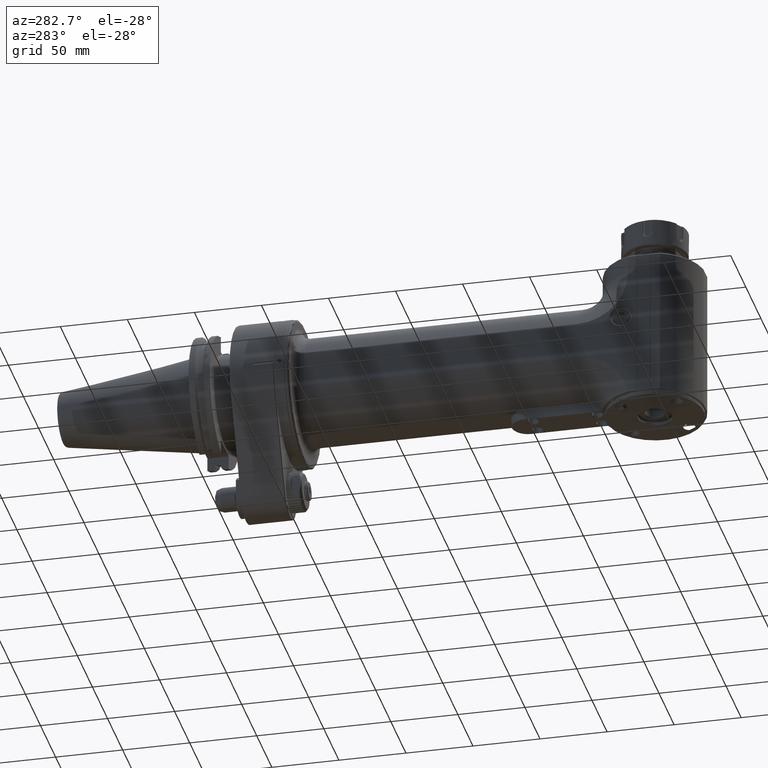
[diagram: clean part render]
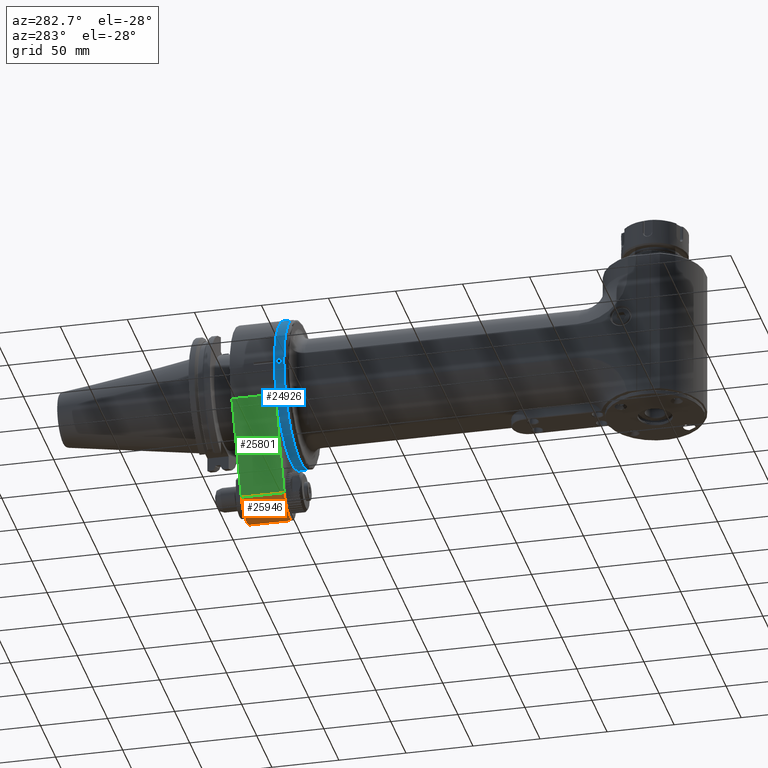
[diagram: same view with three faces highlighted in distinct colors, each labeled with its STEP entity id]
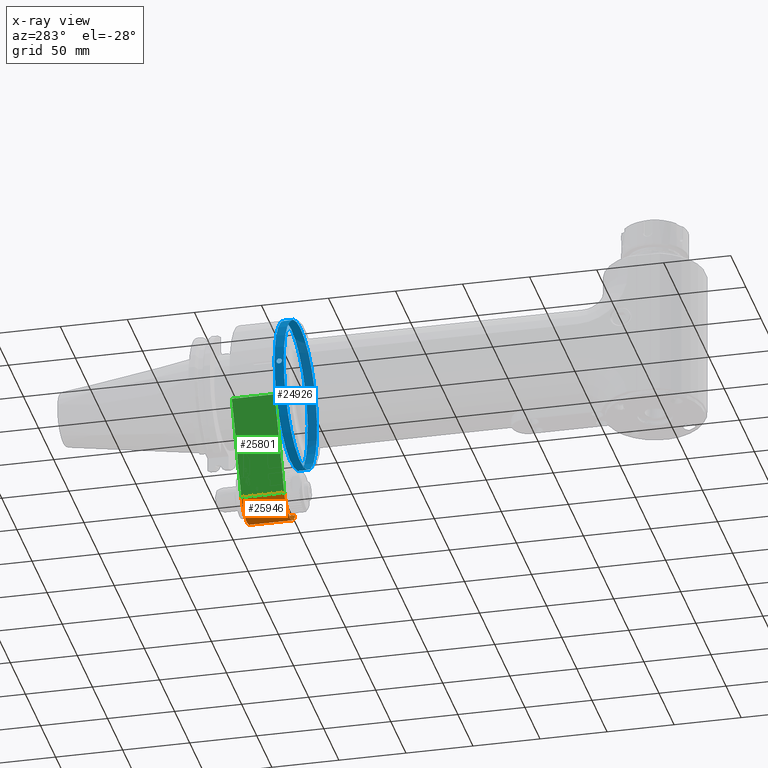
[diagram: x-ray of the same camera — body ghosted, the three highlighted faces saturated]
A machine part, auxiliary view with three faces highlighted in distinct colors.
The next image is the same camera in x-ray (body ghosted, the three faces saturated) — at least one of them is partly hidden behind the body in this view.
Their STEP definitions:

[orange] entity #25946 — the highlighted cylindrical surface (edge-blend (fillet) strip) has radius 20 mm, axis along (0, 1, 0).
#2796=LINE('',#48539,#5209);
#2983=LINE('',#50045,#5396);
#5209=VECTOR('',#34022,31.9997523659797);
#5396=VECTOR('',#34759,31.9997524776297);
#5882=CYLINDRICAL_SURFACE('',#28278,20.);
#7283=FACE_OUTER_BOUND('',#8852,.T.);
#8852=EDGE_LOOP('',(#22790,#22791,#22792,#22793));
#9802=CIRCLE('',#27967,20.);
#9951=CIRCLE('',#28277,20.);
#12094=VERTEX_POINT('',#48405);
#12095=VERTEX_POINT('',#48409);
#12134=VERTEX_POINT('',#48537);
#12360=VERTEX_POINT('',#50041);
#15499=EDGE_CURVE('',#12095,#12094,#9802,.T.);
#15555=EDGE_CURVE('',#12134,#12094,#2796,.T.);
#15924=EDGE_CURVE('',#12134,#12360,#9951,.T.);
#15925=EDGE_CURVE('',#12095,#12360,#2983,.T.);
#22790=ORIENTED_EDGE('',*,*,#15924,.T.);
#22791=ORIENTED_EDGE('',*,*,#15925,.F.);
#22792=ORIENTED_EDGE('',*,*,#15499,.T.);
#22793=ORIENTED_EDGE('',*,*,#15555,.F.);
#25946=ADVANCED_FACE('',(#7283),#5882,.T.);
#27967=AXIS2_PLACEMENT_3D('',#48410,#33922,#33923);
#28277=AXIS2_PLACEMENT_3D('',#50043,#34755,#34756);
#28278=AXIS2_PLACEMENT_3D('',#50044,#34757,#34758);
#33922=DIRECTION('center_axis',(0.,1.,0.));
#33923=DIRECTION('ref_axis',(1.,0.,0.));
#34022=DIRECTION('',(3.81080393947804E-7,-0.99999999999991,1.85405221315602E-7));
#34755=DIRECTION('center_axis',(0.,-1.,0.));
#34756=DIRECTION('ref_axis',(1.,0.,0.));
#34757=DIRECTION('center_axis',(0.,1.,0.));
#34758=DIRECTION('ref_axis',(1.,0.,0.));
#34759=DIRECTION('',(-3.82438699266904E-7,0.99999999999991,1.86079929291902E-7));
#48405=CARTESIAN_POINT('',(-17.9843328943923,0.500151595690337,-88.7499827273196));
#48409=CARTESIAN_POINT('',(17.9843682449328,0.500170512042425,-88.7499999331764));
#48410=CARTESIAN_POINT('Origin',(0.,0.500341024091354,-80.));
#48537=CARTESIAN_POINT('',(-17.9843682475779,32.4998292651373,-88.7499999277408));
#48539=CARTESIAN_POINT('',(-17.98435747667,32.49985520783,-88.74999468733));
#50041=CARTESIAN_POINT('',(17.9843685923995,32.4998283294068,-88.7500001053328));
#50043=CARTESIAN_POINT('Origin',(0.,32.499658530269,-80.));
#50044=CARTESIAN_POINT('Origin',(0.,0.,-80.));
#50045=CARTESIAN_POINT('',(17.98435748801,0.5001435280147,-88.74999469957));

[blue] entity #24926 — the highlighted cylindrical surface (bore or boss wall) has radius 55 mm, axis along (-0, 1, 0).
#384=B_SPLINE_CURVE_WITH_KNOTS('',3,(#38289,#38290,#38291,#38292,#38293,
#38294,#38295,#38296,#38297,#38298,#38299,#38300,#38301,#38302,#38303,#38304,
#38305,#38306,#38307,#38308,#38309,#38310),.UNSPECIFIED.,.F.,.F.,(4,2,2,
2,2,2,2,2,2,2,4),(4.76471702878774E-5,0.0575495657303554,0.132747128957932,
0.200670558487224,0.329421947281225,0.449240050945458,0.56889901613311,
0.690619312402385,0.751157996955262,0.818556301448253,0.870180661496167),
 .UNSPECIFIED.);
#385=B_SPLINE_CURVE_WITH_KNOTS('',3,(#38312,#38313,#38314,#38315,#38316,
#38317,#38318,#38319,#38320,#38321,#38322,#38323,#38324,#38325,#38326,#38327,
#38328,#38329,#38330,#38331,#38332,#38333),.UNSPECIFIED.,.F.,.F.,(4,2,2,
2,2,2,2,2,2,2,4),(3.95623200983854E-5,0.0392633076712616,0.0796881420531636,
0.179470463851627,0.343320224915233,0.505881813597239,0.668353436818447,
0.832277091841076,0.957857268991608,1.01347170327305,1.06748901454717),
 .UNSPECIFIED.);
#1287=LINE('',#38287,#3700);
#1288=LINE('',#38311,#3701);
#3700=VECTOR('',#29825,55.);
#3701=VECTOR('',#29826,55.);
#5741=CYLINDRICAL_SURFACE('',#26657,55.);
#6263=FACE_OUTER_BOUND('',#7756,.T.);
#7756=EDGE_LOOP('',(#17403,#17404,#17405,#17406,#17407,#17408,#17409,#17410,
#17411,#17412));
#9328=CIRCLE('',#26655,55.);
#9329=CIRCLE('',#26656,55.);
#9330=CIRCLE('',#26658,55.);
#9331=CIRCLE('',#26659,55.);
#10571=VERTEX_POINT('',#38276);
#10572=VERTEX_POINT('',#38277);
#10573=VERTEX_POINT('',#38282);
#10574=VERTEX_POINT('',#38283);
#10575=VERTEX_POINT('',#38286);
#10576=VERTEX_POINT('',#38288);
#13220=EDGE_CURVE('',#10571,#10572,#9328,.T.);
#13221=EDGE_CURVE('',#10572,#10571,#9329,.T.);
#13223=EDGE_CURVE('',#10573,#10574,#9330,.T.);
#13224=EDGE_CURVE('',#10574,#10573,#9331,.T.);
#13225=EDGE_CURVE('',#10574,#10575,#1287,.T.);
#13226=EDGE_CURVE('',#10575,#10576,#384,.T.);
#13227=EDGE_CURVE('',#10576,#10571,#1288,.T.);
#13228=EDGE_CURVE('',#10576,#10575,#385,.T.);
#17403=ORIENTED_EDGE('',*,*,#13223,.F.);
#17404=ORIENTED_EDGE('',*,*,#13224,.F.);
#17405=ORIENTED_EDGE('',*,*,#13225,.T.);
#17406=ORIENTED_EDGE('',*,*,#13226,.T.);
#17407=ORIENTED_EDGE('',*,*,#13227,.T.);
#17408=ORIENTED_EDGE('',*,*,#13220,.T.);
#17409=ORIENTED_EDGE('',*,*,#13221,.T.);
#17410=ORIENTED_EDGE('',*,*,#13227,.F.);
#17411=ORIENTED_EDGE('',*,*,#13228,.T.);
#17412=ORIENTED_EDGE('',*,*,#13225,.F.);
#24926=ADVANCED_FACE('',(#6263),#5741,.T.);
#26655=AXIS2_PLACEMENT_3D('',#38278,#29814,#29815);
#26656=AXIS2_PLACEMENT_3D('',#38279,#29816,#29817);
#26657=AXIS2_PLACEMENT_3D('',#38281,#29819,#29820);
#26658=AXIS2_PLACEMENT_3D('',#38284,#29821,#29822);
#26659=AXIS2_PLACEMENT_3D('',#38285,#29823,#29824);
#29814=DIRECTION('center_axis',(0.,1.,0.));
#29815=DIRECTION('ref_axis',(-1.,0.,0.));
#29816=DIRECTION('center_axis',(0.,1.,0.));
#29817=DIRECTION('ref_axis',(-1.,0.,0.));
#29819=DIRECTION('center_axis',(0.,1.,0.));
#29820=DIRECTION('ref_axis',(1.,0.,0.));
#29821=DIRECTION('center_axis',(0.,1.,0.));
#29822=DIRECTION('ref_axis',(1.,0.,0.));
#29823=DIRECTION('center_axis',(0.,1.,0.));
#29824=DIRECTION('ref_axis',(1.,0.,0.));
#29825=DIRECTION('',(0.,-1.,0.));
#29826=DIRECTION('',(0.,-1.,0.));
#38276=CARTESIAN_POINT('',(-55.,264.5000050548,0.));
#38277=CARTESIAN_POINT('',(-7.61850780258389E-13,264.500005054799,55.0000000000018));
#38278=CARTESIAN_POINT('Origin',(0.,264.5000050548,0.));
#38279=CARTESIAN_POINT('Origin',(0.,264.5000050548,0.));
#38281=CARTESIAN_POINT('Origin',(0.,263.605,0.));
#38282=CARTESIAN_POINT('',(-3.80675457286407E-13,271.399993878572,54.9999999999732));
#38283=CARTESIAN_POINT('',(-55.,271.3999938786,6.73555739531044E-15));
#38284=CARTESIAN_POINT('Origin',(0.,271.3999938786,0.));
#38285=CARTESIAN_POINT('Origin',(0.,271.3999938786,0.));
#38286=CARTESIAN_POINT('',(-55.,269.850323377632,-6.95444507218206E-7));
#38287=CARTESIAN_POINT('',(-55.,263.605,6.73555739531044E-15));
#38288=CARTESIAN_POINT('',(-54.9998972986366,265.949609592431,3.31057760667854E-7));
#38289=CARTESIAN_POINT('Ctrl Pts',(-55.,269.849567044107,-2.20427907871024E-7));
#38290=CARTESIAN_POINT('Ctrl Pts',(-55.0000000007682,269.84966822929,0.191670067792559));
#38291=CARTESIAN_POINT('Ctrl Pts',(-54.9989821819534,269.822499858163,0.38169847236425));
#38292=CARTESIAN_POINT('Ctrl Pts',(-54.9946251829346,269.695534930461,0.805539362013885));
#38293=CARTESIAN_POINT('Ctrl Pts',(-54.9912983156071,269.591208639842,0.985157342574003));
#38294=CARTESIAN_POINT('Ctrl Pts',(-54.9868837382859,269.442641135482,1.20564108444121));
#38295=CARTESIAN_POINT('Ctrl Pts',(-54.9846297865406,269.362457201884,1.3032811077611));
#38296=CARTESIAN_POINT('Ctrl Pts',(-54.978048148424,269.10154853872,1.56306166687259));
#38297=CARTESIAN_POINT('Ctrl Pts',(-54.9734503197913,268.888764121607,1.71185412031636));
#38298=CARTESIAN_POINT('Ctrl Pts',(-54.9668642234775,268.403081765203,1.91130604233461));
#38299=CARTESIAN_POINT('Ctrl Pts',(-54.9650468318023,268.153379862179,1.96051697493974));
#38300=CARTESIAN_POINT('Ctrl Pts',(-54.9650341952207,267.649693090859,1.96087122203088));
#38301=CARTESIAN_POINT('Ctrl Pts',(-54.9668340934027,267.400231175288,1.91214382194507));
#38302=CARTESIAN_POINT('Ctrl Pts',(-54.9732052495493,266.928213513437,1.71935063403378));
#38303=CARTESIAN_POINT('Ctrl Pts',(-54.9777051407279,266.712431658168,1.57620319829965));
#38304=CARTESIAN_POINT('Ctrl Pts',(-54.9845547123132,266.440327071511,1.30643687320818));
#38305=CARTESIAN_POINT('Ctrl Pts',(-54.9868150865955,266.359753651328,1.20876550146592));
#38306=CARTESIAN_POINT('Ctrl Pts',(-54.9912541032695,266.210117507094,0.987694792721207));
#38307=CARTESIAN_POINT('Ctrl Pts',(-54.9945843957908,266.105750417464,0.808423425406083));
#38308=CARTESIAN_POINT('Ctrl Pts',(-54.9989704927411,265.977954238999,0.383655572958414));
#38309=CARTESIAN_POINT('Ctrl Pts',(-55.0000000035121,265.950178118626,0.192300600367119));
#38310=CARTESIAN_POINT('Ctrl Pts',(-55.,265.950203507344,-1.00449237892819E-6));
#38311=CARTESIAN_POINT('',(-55.,263.605,6.73555739531044E-15));
#38312=CARTESIAN_POINT('Ctrl Pts',(-55.,265.949250037761,-1.41378928328328E-6));
#38313=CARTESIAN_POINT('Ctrl Pts',(-54.9999999966391,265.949343122716,-0.130748051503508));
#38314=CARTESIAN_POINT('Ctrl Pts',(-54.9995258235951,265.962975137523,-0.261907624571733));
#38315=CARTESIAN_POINT('Ctrl Pts',(-54.9976792953941,266.01597887439,-0.52223612694628));
#38316=CARTESIAN_POINT('Ctrl Pts',(-54.9962763428109,266.056264212608,-0.651899850167462));
#38317=CARTESIAN_POINT('Ctrl Pts',(-54.9902072065513,266.240155993499,-1.0820571629549));
#38318=CARTESIAN_POINT('Ctrl Pts',(-54.9851510188683,266.417144599907,-1.28264940744494));
#38319=CARTESIAN_POINT('Ctrl Pts',(-54.9778178484608,266.707342653668,-1.57224709847187));
#38320=CARTESIAN_POINT('Ctrl Pts',(-54.9733137880007,266.922399869585,-1.71590593524982));
#38321=CARTESIAN_POINT('Ctrl Pts',(-54.9668901348298,267.393763523364,-1.91060230236142));
#38322=CARTESIAN_POINT('Ctrl Pts',(-54.9650434749811,267.645154903639,-1.9606110770842));
#38323=CARTESIAN_POINT('Ctrl Pts',(-54.9650402263898,268.154066048766,-1.96070214808304));
#38324=CARTESIAN_POINT('Ctrl Pts',(-54.9668813830557,268.405061440584,-1.91083855472395));
#38325=CARTESIAN_POINT('Ctrl Pts',(-54.9732899173278,268.876286305686,-1.71665854236474));
#38326=CARTESIAN_POINT('Ctrl Pts',(-54.9777902262796,269.091525505302,-1.5732503752174));
#38327=CARTESIAN_POINT('Ctrl Pts',(-54.9858580293718,269.410850140706,-1.25479531528714));
#38328=CARTESIAN_POINT('Ctrl Pts',(-54.9906446732606,269.573197307032,-1.05206987740859));
#38329=CARTESIAN_POINT('Ctrl Pts',(-54.9963034248537,269.744476406668,-0.649521701643113));
#38330=CARTESIAN_POINT('Ctrl Pts',(-54.9976957618118,269.784459707248,-0.520352082426764));
#38331=CARTESIAN_POINT('Ctrl Pts',(-54.9995289590266,269.837139285718,-0.261036415906407));
#38332=CARTESIAN_POINT('Ctrl Pts',(-54.9999999976004,269.850734376059,-0.130295647711565));
#38333=CARTESIAN_POINT('Ctrl Pts',(-55.,269.850828891929,-1.0129336493192E-6));

[green] entity #25801 — the highlighted planar face has unit normal (-0.8992, 0, -0.4375).
#2768=LINE('',#48406,#5181);
#2794=LINE('',#48535,#5207);
#2795=LINE('',#48538,#5208);
#2796=LINE('',#48539,#5209);
#5181=VECTOR('',#33918,10.);
#5207=VECTOR('',#34018,31.99973945275);
#5208=VECTOR('',#34021,10.);
#5209=VECTOR('',#34022,31.9997523659797);
#7138=FACE_OUTER_BOUND('',#8692,.T.);
#8692=EDGE_LOOP('',(#22035,#22036,#22037,#22038));
#12093=VERTEX_POINT('',#48401);
#12094=VERTEX_POINT('',#48405);
#12133=VERTEX_POINT('',#48533);
#12134=VERTEX_POINT('',#48537);
#15497=EDGE_CURVE('',#12094,#12093,#2768,.T.);
#15553=EDGE_CURVE('',#12093,#12133,#2794,.T.);
#15554=EDGE_CURVE('',#12133,#12134,#2795,.T.);
#15555=EDGE_CURVE('',#12134,#12094,#2796,.T.);
#22035=ORIENTED_EDGE('',*,*,#15554,.T.);
#22036=ORIENTED_EDGE('',*,*,#15555,.T.);
#22037=ORIENTED_EDGE('',*,*,#15497,.T.);
#22038=ORIENTED_EDGE('',*,*,#15553,.T.);
#24519=PLANE('',#28003);
#25801=ADVANCED_FACE('',(#7138),#24519,.T.);
#28003=AXIS2_PLACEMENT_3D('',#48536,#34019,#34020);
#33918=DIRECTION('',(-0.437500000000014,3.7603714385475E-14,0.899218410621128));
#34018=DIRECTION('',(5.768077461949E-11,1.,-1.167938596251E-10));
#34019=DIRECTION('center_axis',(-0.899218410621128,0.,-0.437500000000014));
#34020=DIRECTION('ref_axis',(-0.437500000000014,0.,0.899218410621128));
#34021=DIRECTION('',(0.437500000000014,3.75252097625435E-14,-0.899218410621128));
#34022=DIRECTION('',(3.81080393947804E-7,-0.99999999999991,1.85405221315602E-7));
#48401=CARTESIAN_POINT('',(-49.4570126851416,0.500104879983724,-24.0625000849106));
#48405=CARTESIAN_POINT('',(-17.9843328943923,0.500151595690337,-88.7499827273196));
#48406=CARTESIAN_POINT('',(-25.8525293053557,0.499999999994983,-72.5781249999991));
#48533=CARTESIAN_POINT('',(-49.457012697233,32.4998619131206,-24.0625000954287));
#48535=CARTESIAN_POINT('',(-49.45701257004,0.5001131670995,-24.06250002891));
#48536=CARTESIAN_POINT('Origin',(-17.98436821242,0.,-88.75));
#48537=CARTESIAN_POINT('',(-17.9843682475779,32.4998292651373,-88.7499999277408));
#48538=CARTESIAN_POINT('',(-25.852529305356,32.500000000005,-72.5781249999985));
#48539=CARTESIAN_POINT('',(-17.98435747667,32.49985520783,-88.74999468733));